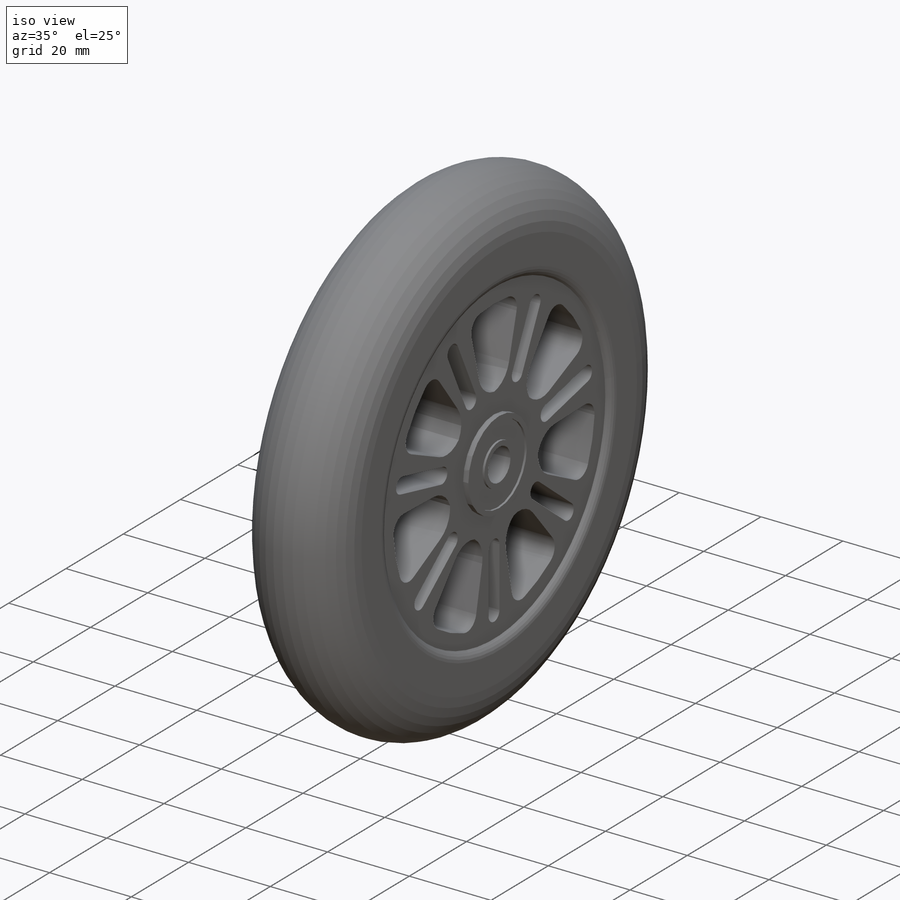
[diagram: iso view]
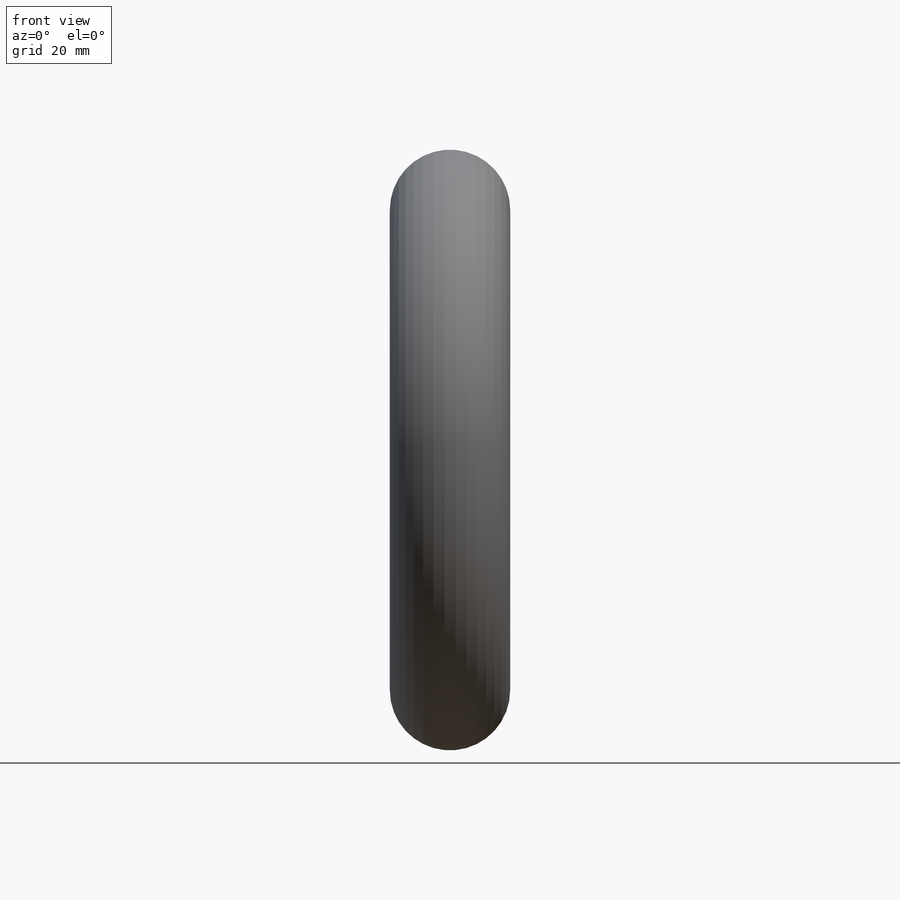
[diagram: front view]
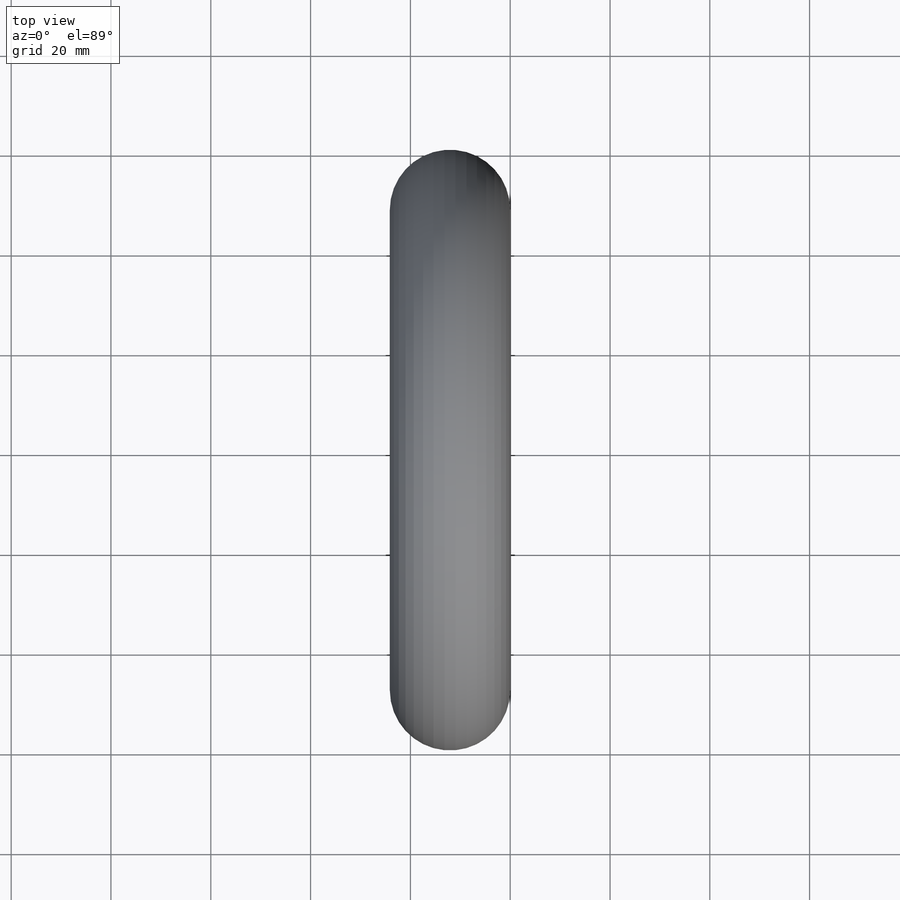
[diagram: top view]
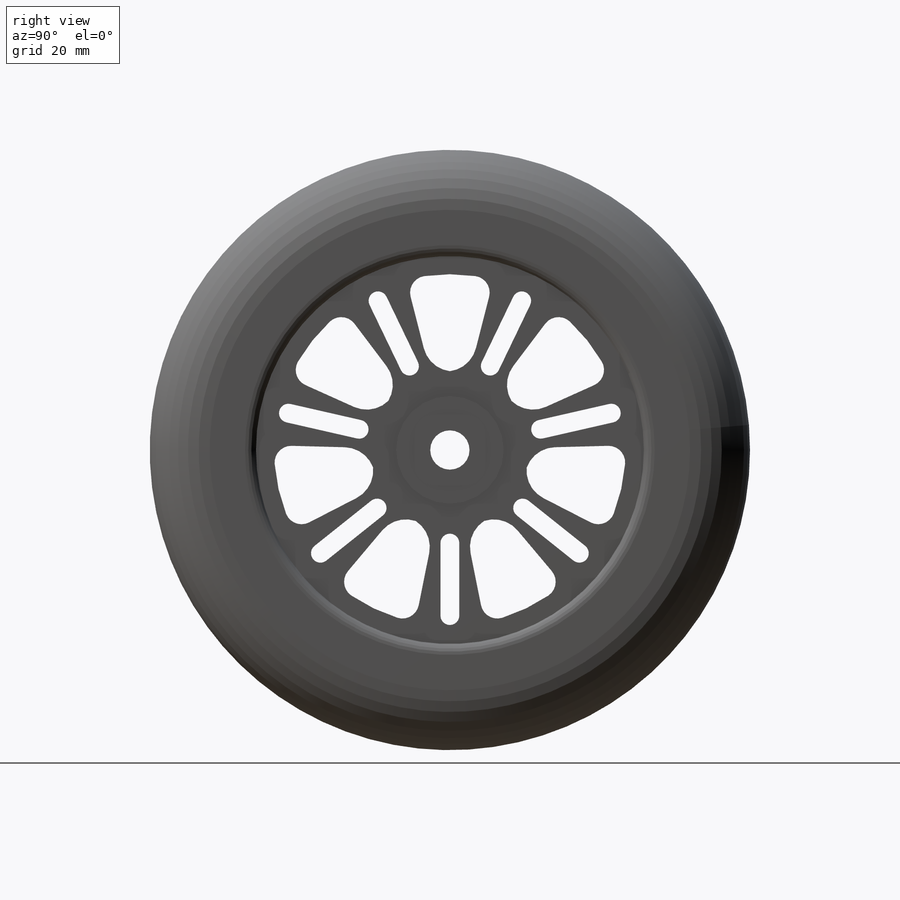
[diagram: right view]
SOLIDWORKS PART (.sldprt)
format: sldprt  version: not decoded by parser v0  size: 520,704 bytes
history: native  units: mm
features: sketch x5, cut_extrude x4, mirror x2, material x1, revolve x1, plane x1, fillet x1 (+11 scaffold rows collapsed)
feature tree (26):
  scaffold x11  (default folders/planes/origin — collapsed)
  material  "Material <not specified>"
  sketch  "Sketch1"  dims[D1=60.198mm D2=24.13mm]
  revolve  "Revolve1"  Angle=360deg
  sketch  "Sketch2"  dims[D1=78.74mm D2=21.59mm D3=7.874mm]
  cut_extrude  "Cut-Extrude1"  [1 undecoded]
  sketch  "Sketch3"  dims[c1.D1=80.01mm c1.D2=31.496mm c1.D4=~10.316662mm c2.D4=~22.693675deg c3.D4=~53.809443mm c4.D4=11.345deg c4.D3=7.0 c4.D5=7.0]
  cut_extrude  "Cut-Extrude2"  [1 undecoded]
  sketch  "Sketch5"
  cut_extrude  "Cut-Extrude3"  Depth=1.27mm
  plane  "Plane1"  Offset=12.065mm
  sketch  "Sketch6"
  cut_extrude  "Cut-Extrude4"  Depth=0.508mm
  mirror  "Mirror8"
  mirror  "Mirror11"
  fillet  "Fillet3"  Radius=2.54mm
decode coverage: 7 of 13 modeling features carry decoded parameters
note: ~ marks probable driven/reference dimensions
note: 2 parameter values undecoded
note: suppression state not decoded; provenance and decode notes live in map.json
